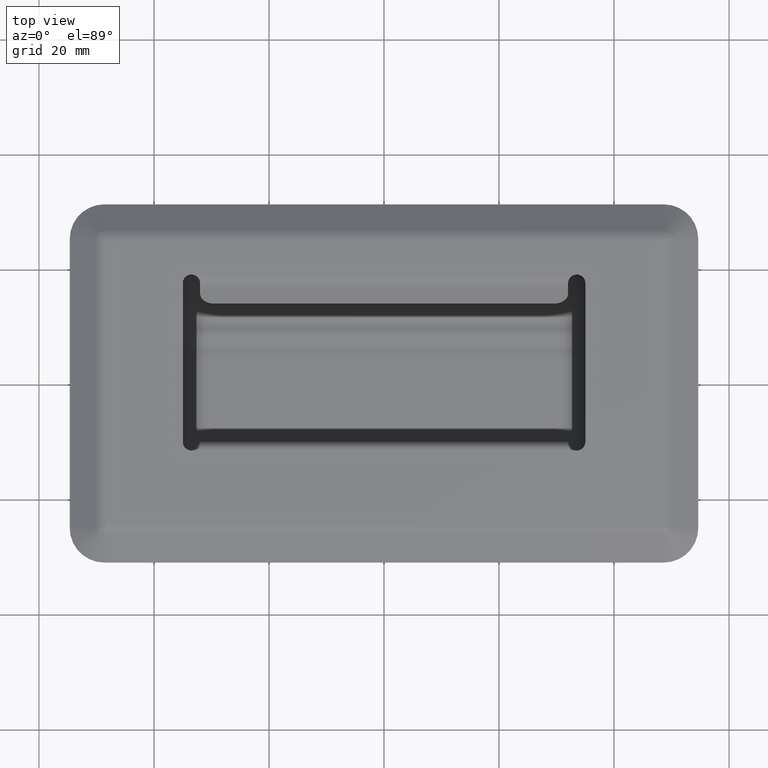
[diagram: clean part render]
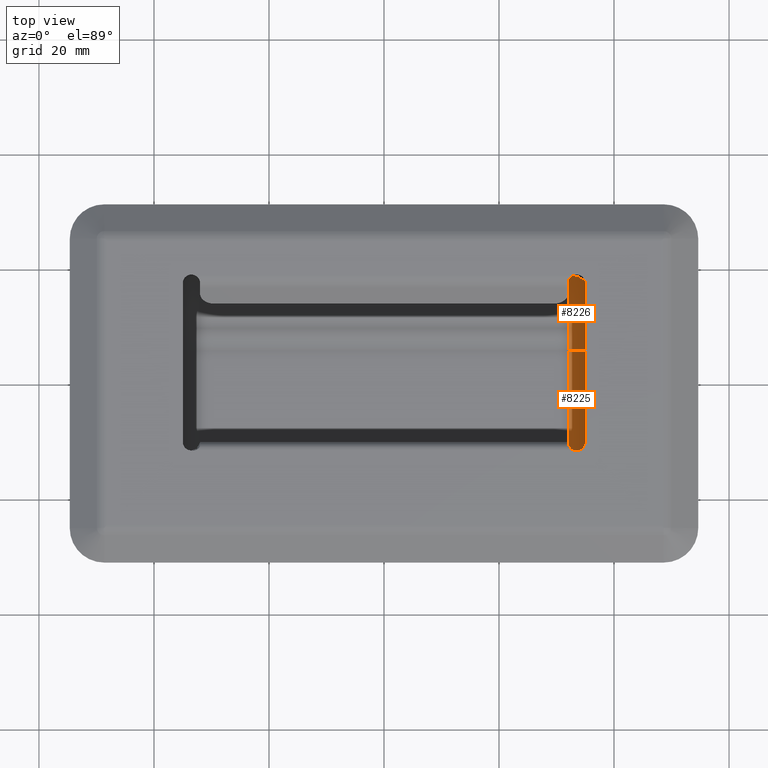
[diagram: same view with one multi-face feature highlighted, each face labeled with its STEP entity id]
A machine part, top view. The highlighted faces form ONE feature: a constant-radius fillet chain: 2 tangent blend faces with common blend radius 4 mm. The faces share edges in the B-rep.
Their STEP definitions:
[1] entity #8225 (Cylinder):
#382=CIRCLE('',#8871,4.);
#385=CIRCLE('',#8875,4.);
#661=CYLINDRICAL_SURFACE('',#8874,4.);
#956=FACE_OUTER_BOUND('',#1476,.T.);
#1476=EDGE_LOOP('',(#6280,#6281,#6282,#6283));
#1990=LINE('',#13967,#2548);
#2078=LINE('',#14715,#2636);
#2548=VECTOR('',#9805,21.6);
#2636=VECTOR('',#10099,21.6);
#3567=VERTEX_POINT('',#13964);
#3568=VERTEX_POINT('',#13966);
#3726=VERTEX_POINT('',#14708);
#3727=VERTEX_POINT('',#14713);
#4461=EDGE_CURVE('',#3568,#3567,#1990,.T.);
#4650=EDGE_CURVE('',#3568,#3726,#382,.T.);
#4653=EDGE_CURVE('',#3567,#3727,#385,.T.);
#4654=EDGE_CURVE('',#3727,#3726,#2078,.T.);
#6280=ORIENTED_EDGE('',*,*,#4653,.T.);
#6281=ORIENTED_EDGE('',*,*,#4654,.T.);
#6282=ORIENTED_EDGE('',*,*,#4650,.F.);
#6283=ORIENTED_EDGE('',*,*,#4461,.T.);
#8225=ADVANCED_FACE('',(#956),#661,.F.);
#8871=AXIS2_PLACEMENT_3D('',#14709,#10089,#10090);
#8874=AXIS2_PLACEMENT_3D('',#14712,#10095,#10096);
#8875=AXIS2_PLACEMENT_3D('',#14714,#10097,#10098);
#9805=DIRECTION('',(0.,1.,3.7470027081099E-16));
#10089=DIRECTION('center_axis',(0.,1.,3.7470027081099E-16));
#10090=DIRECTION('ref_axis',(1.,0.,0.));
#10095=DIRECTION('center_axis',(0.,1.,3.7470027081099E-16));
#10096=DIRECTION('ref_axis',(0.707106781186547,2.64953102402887E-16,-0.707106781186548));
#10097=DIRECTION('center_axis',(0.,1.,3.7470027081099E-16));
#10098=DIRECTION('ref_axis',(1.,0.,0.));
#10099=DIRECTION('',(0.,-1.,-3.7470027081099E-16));
#13964=CARTESIAN_POINT('',(36.1,6.,-56.8));
#13966=CARTESIAN_POINT('',(36.1,-15.6,-56.8));
#13967=CARTESIAN_POINT('',(36.1,-10.5,-56.8));
#14708=CARTESIAN_POINT('',(32.1,-15.6,-60.8));
#14709=CARTESIAN_POINT('Origin',(32.1,-15.6,-56.8));
#14712=CARTESIAN_POINT('Origin',(32.1,-10.5,-56.8));
#14713=CARTESIAN_POINT('',(32.1,6.,-60.8));
#14714=CARTESIAN_POINT('Origin',(32.1,6.,-56.8));
#14715=CARTESIAN_POINT('',(32.1,-10.5,-60.8));
[2] entity #8226 (Torus):
#207=TOROIDAL_SURFACE('',#8876,11.4640186915888,4.);
#334=CIRCLE('',#8772,11.4640186915888);
#385=CIRCLE('',#8875,4.);
#386=CIRCLE('',#8877,4.);
#387=CIRCLE('',#8878,15.4640186915888);
#957=FACE_OUTER_BOUND('',#1477,.T.);
#1477=EDGE_LOOP('',(#6284,#6285,#6286,#6287));
#3566=VERTEX_POINT('',#13962);
#3567=VERTEX_POINT('',#13964);
#3727=VERTEX_POINT('',#14713);
#3728=VERTEX_POINT('',#14717);
#4460=EDGE_CURVE('',#3567,#3566,#334,.T.);
#4653=EDGE_CURVE('',#3567,#3727,#385,.T.);
#4655=EDGE_CURVE('',#3566,#3728,#386,.T.);
#4656=EDGE_CURVE('',#3728,#3727,#387,.T.);
#6284=ORIENTED_EDGE('',*,*,#4655,.T.);
#6285=ORIENTED_EDGE('',*,*,#4656,.T.);
#6286=ORIENTED_EDGE('',*,*,#4653,.F.);
#6287=ORIENTED_EDGE('',*,*,#4460,.T.);
#8226=ADVANCED_FACE('',(#957),#207,.F.);
#8772=AXIS2_PLACEMENT_3D('',#13965,#9803,#9804);
#8875=AXIS2_PLACEMENT_3D('',#14714,#10097,#10098);
#8876=AXIS2_PLACEMENT_3D('',#14716,#10100,#10101);
#8877=AXIS2_PLACEMENT_3D('',#14718,#10102,#10103);
#8878=AXIS2_PLACEMENT_3D('',#14719,#10104,#10105);
#9803=DIRECTION('center_axis',(1.,0.,0.));
#9804=DIRECTION('ref_axis',(0.,0.328654685832708,-0.944450156165059));
#10097=DIRECTION('center_axis',(0.,1.,3.7470027081099E-16));
#10098=DIRECTION('ref_axis',(1.,0.,0.));
#10100=DIRECTION('center_axis',(1.,0.,0.));
#10101=DIRECTION('ref_axis',(0.,-1.,-4.59481296505791E-16));
#10102=DIRECTION('center_axis',(-2.3242593463803E-16,0.546586450626933,
0.837402682101658));
#10103=DIRECTION('ref_axis',(1.,-1.72563323017096E-31,2.77555756156289E-16));
#10104=DIRECTION('center_axis',(-1.,0.,0.));
#10105=DIRECTION('ref_axis',(0.,0.328654685832708,-0.944450156165059));
#13962=CARTESIAN_POINT('',(36.1,15.6,-51.6020585949675));
#13964=CARTESIAN_POINT('',(36.1,6.,-56.8));
#13965=CARTESIAN_POINT('Origin',(36.1,5.99999999999999,-45.3359813084112));
#14713=CARTESIAN_POINT('',(32.1,6.,-60.8));
#14714=CARTESIAN_POINT('Origin',(32.1,6.,-56.8));
#14716=CARTESIAN_POINT('Origin',(32.1,5.99999999999999,-45.3359813084112));
#14717=CARTESIAN_POINT('',(32.1,18.9496107284066,-53.7884043974753));
#14718=CARTESIAN_POINT('Origin',(32.1,15.6,-51.6020585949675));
#14719=CARTESIAN_POINT('Origin',(32.1,5.99999999999999,-45.3359813084112));